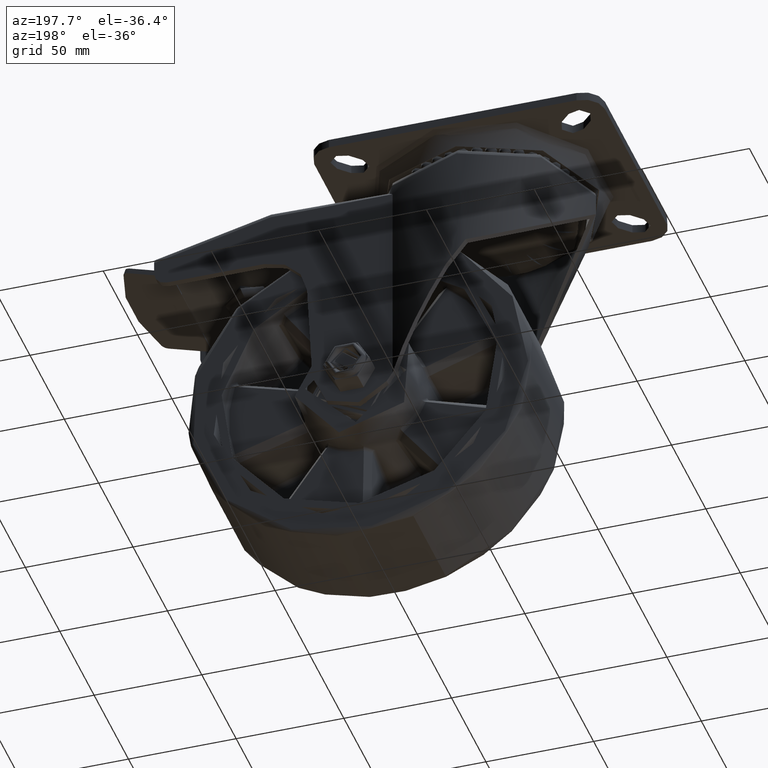
[diagram: clean part render]
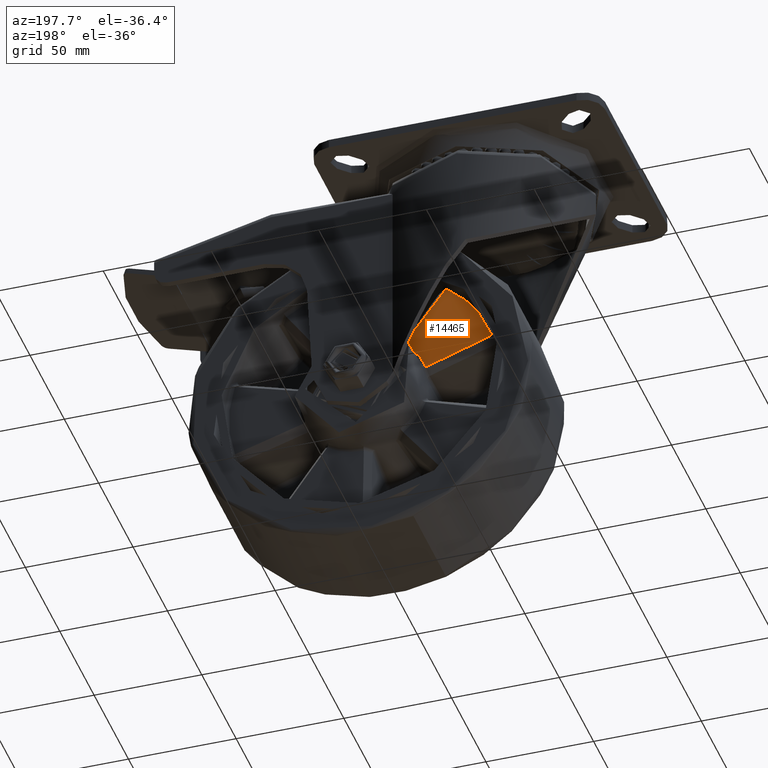
[diagram: same view with one face highlighted and labeled with its STEP entity id]
A machine part, auxiliary view. The second image highlights one B-rep face of the part: STEP entity #14465.
In plain terms, the highlighted planar face has unit normal (0, -1, -0).
Its self-contained STEP definition (entity closure, byte-faithful):
#1150=PLANE('',#16081);
#1511=B_SPLINE_CURVE_WITH_KNOTS('',3,(#43861,#43862,#43863,#43864,#43865,
#43866,#43867,#43868,#43869,#43870,#43871,#43872,#43873),.UNSPECIFIED.,
 .F.,.F.,(4,2,2,1,2,2,4),(0.00170022648120324,0.00661709626350638,0.0144291689638184,
0.0193117144015133,0.0241942598392083,0.0320063325395203,0.0347003278167991),
 .UNSPECIFIED.);
#1513=B_SPLINE_CURVE_WITH_KNOTS('',3,(#44139,#44140,#44141,#44142,#44143,
#44144,#44145,#44146,#44147,#44148,#44149,#44150),.UNSPECIFIED.,.F.,.F.,
(4,2,1,1,2,2,4),(0.00150007452804806,0.00465562485569893,0.0117830704790763,
0.0162377239936872,0.0206923775082981,0.0278198231316755,0.0345001758642251),
 .UNSPECIFIED.);
#2414=FACE_OUTER_BOUND('',#3350,.T.);
#3350=EDGE_LOOP('',(#12164,#12165,#12166,#12167));
#5647=CIRCLE('',#15936,30.);
#5657=CIRCLE('',#15950,63.);
#6824=VERTEX_POINT('',#37247);
#6825=VERTEX_POINT('',#37276);
#6832=VERTEX_POINT('',#40801);
#6833=VERTEX_POINT('',#40830);
#8536=EDGE_CURVE('',#6824,#6825,#5647,.T.);
#8562=EDGE_CURVE('',#6832,#6833,#5657,.T.);
#8576=EDGE_CURVE('',#6825,#6832,#1511,.T.);
#8578=EDGE_CURVE('',#6833,#6824,#1513,.T.);
#12164=ORIENTED_EDGE('',*,*,#8536,.F.);
#12165=ORIENTED_EDGE('',*,*,#8578,.F.);
#12166=ORIENTED_EDGE('',*,*,#8562,.F.);
#12167=ORIENTED_EDGE('',*,*,#8576,.F.);
#14465=ADVANCED_FACE('',(#2414),#1150,.F.);
#15936=AXIS2_PLACEMENT_3D('',#37278,#18968,#18969);
#15950=AXIS2_PLACEMENT_3D('',#40832,#18996,#18997);
#16081=AXIS2_PLACEMENT_3D('',#61626,#19258,#19259);
#18968=DIRECTION('center_axis',(0.,1.,2.25514051876985E-15));
#18969=DIRECTION('ref_axis',(-0.809016994374947,-1.32553833878012E-15,0.587785252292473));
#18996=DIRECTION('center_axis',(0.,-1.,-2.25514051876985E-15));
#18997=DIRECTION('ref_axis',(-0.809016994374947,-1.32553833878012E-15,0.587785252292474));
#19258=DIRECTION('center_axis',(0.,-1.,-2.25514051876985E-15));
#19259=DIRECTION('ref_axis',(-0.587785252292473,1.82444700438834E-15,-0.809016994374947));
#37247=CARTESIAN_POINT('',(-28.4090398269312,17.0000000000001,9.63983693388204));
#37276=CARTESIAN_POINT('',(-17.9469058323879,17.,24.0397290135185));
#37278=CARTESIAN_POINT('Origin',(0.,17.0000000000001,-3.38271077815478E-15));
#40801=CARTESIAN_POINT('',(-37.7833999993259,16.9999999999999,50.4124457301065));
#40830=CARTESIAN_POINT('',(-59.6207977190512,17.,20.3558463185392));
#40832=CARTESIAN_POINT('Origin',(0.,17.0000000000001,-3.38271077815478E-15));
#43861=CARTESIAN_POINT('Ctrl Pts',(-17.9469058327912,17.,24.0397290132256));
#43862=CARTESIAN_POINT('Ctrl Pts',(-18.9320436211721,17.,25.3495695590019));
#43863=CARTESIAN_POINT('Ctrl Pts',(-19.9171881908762,17.,26.6594050044887));
#43864=CARTESIAN_POINT('Ctrl Pts',(-22.467578085553,17.,30.0503337401346));
#43865=CARTESIAN_POINT('Ctrl Pts',(-24.0328337618669,17.,32.131419244814));
#43866=CARTESIAN_POINT('Ctrl Pts',(-26.5764021450545,17.,35.5131621979008));
#43867=CARTESIAN_POINT('Ctrl Pts',(-28.5330066266897,17.,38.1144928387804));
#43868=CARTESIAN_POINT('Ctrl Pts',(-30.4896379724435,17.,40.7158032737047));
#43869=CARTESIAN_POINT('Ctrl Pts',(-33.0332762003735,17.,44.0974936923018));
#43870=CARTESIAN_POINT('Ctrl Pts',(-34.5986092427004,17.,46.1785210051584));
#43871=CARTESIAN_POINT('Ctrl Pts',(-36.7037709619044,17.,48.9771736887044));
#43872=CARTESIAN_POINT('Ctrl Pts',(-37.2435844556463,17.,49.6948104803533));
#43873=CARTESIAN_POINT('Ctrl Pts',(-37.7833999994904,17.,50.4124457298898));
#44139=CARTESIAN_POINT('Ctrl Pts',(-59.6207977189604,17.,20.3558463187748));
#44140=CARTESIAN_POINT('Ctrl Pts',(-58.6259614626917,17.,20.014247906119));
#44141=CARTESIAN_POINT('Ctrl Pts',(-57.6311240633868,17.,19.6726528223405));
#44142=CARTESIAN_POINT('Ctrl Pts',(-54.3892424149507,17.,18.5595073224402));
#44143=CARTESIAN_POINT('Ctrl Pts',(-50.737787894875,17.,17.3057600741693));
#44144=CARTESIAN_POINT('Ctrl Pts',(-45.6819065059536,17.,15.5698643364985));
#44145=CARTESIAN_POINT('Ctrl Pts',(-42.8730744247815,17.0000000000001,14.6055042838941));
#44146=CARTESIAN_POINT('Ctrl Pts',(-39.2215868179574,17.0000000000001,13.3518534035147));
#44147=CARTESIAN_POINT('Ctrl Pts',(-36.9745117109661,17.0000000000001,12.5803928623889));
#44148=CARTESIAN_POINT('Ctrl Pts',(-32.6213055701848,17.0000000000001,11.0858969557305));
#44149=CARTESIAN_POINT('Ctrl Pts',(-30.5151752412251,17.0000000000001,10.3628595375293));
#44150=CARTESIAN_POINT('Ctrl Pts',(-28.409039826432,17.0000000000001,9.63983693408951));
#61626=CARTESIAN_POINT('Origin',(-2.39729271306602E-14,17.0000000000001,
2.8951788169385E-14));